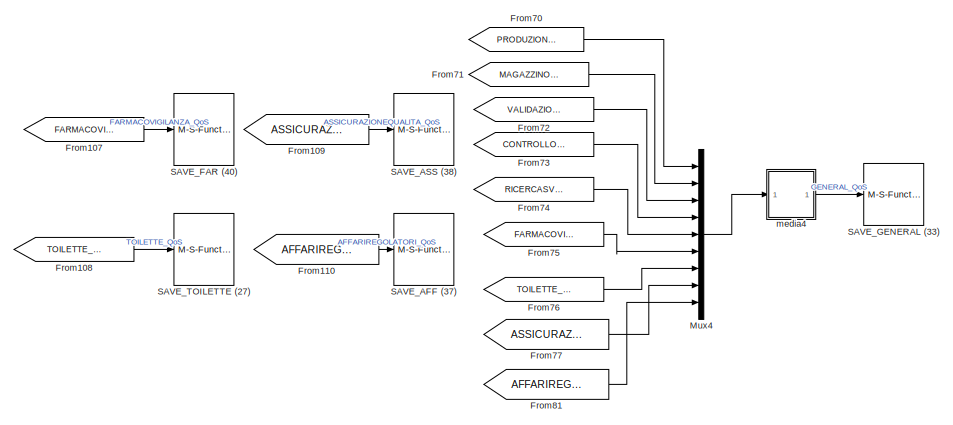
[diagram: root canvas - part 1/12, top right region]
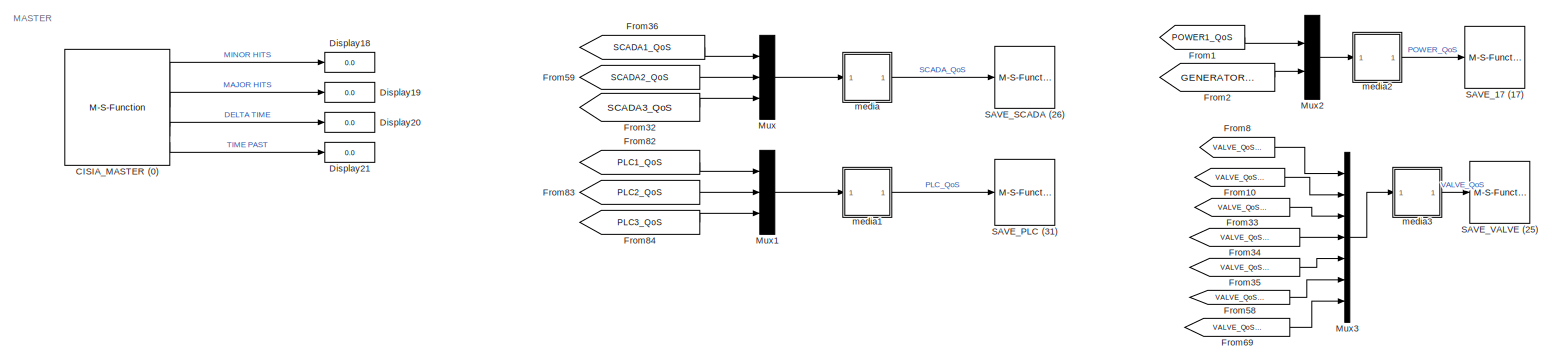
[diagram: root canvas - part 2/12, top left region]
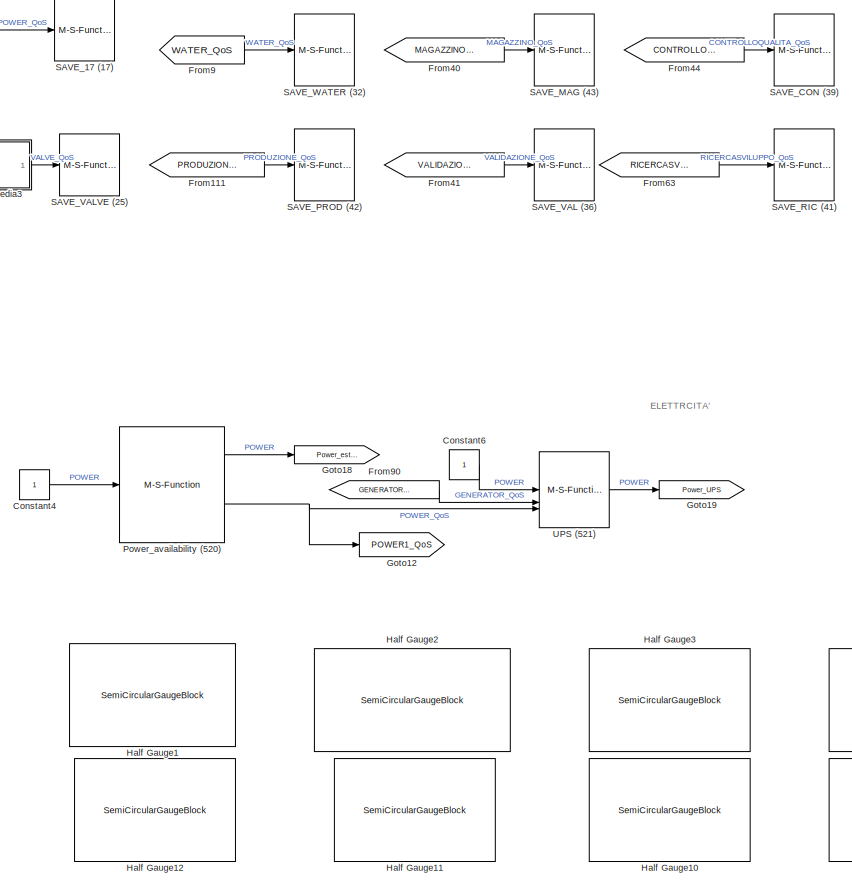
[diagram: root canvas - part 3/12, top center region]
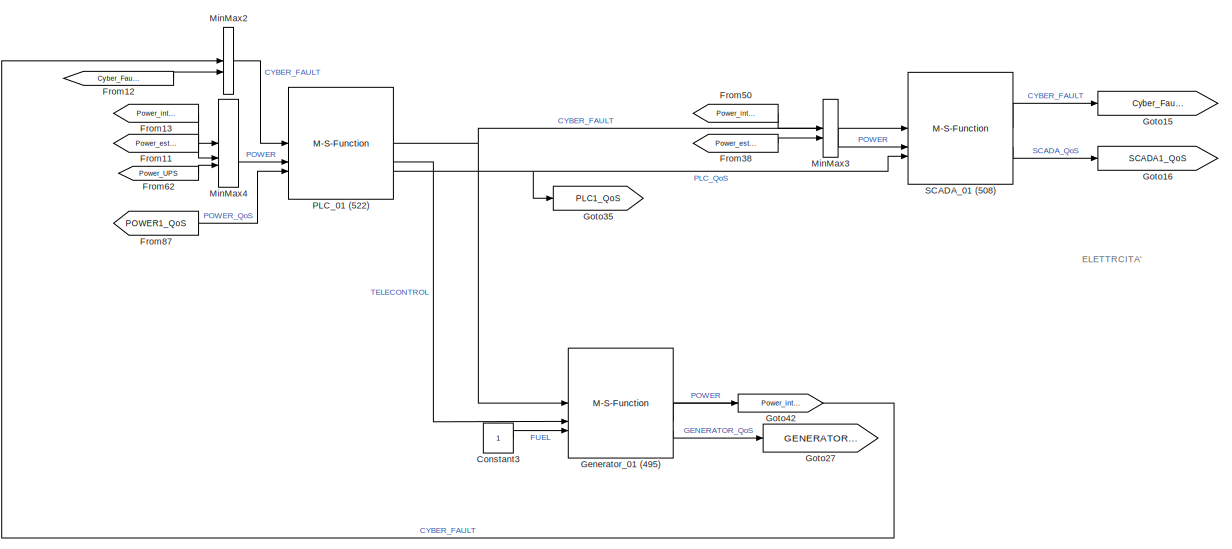
[diagram: root canvas - part 4/12, top left region]
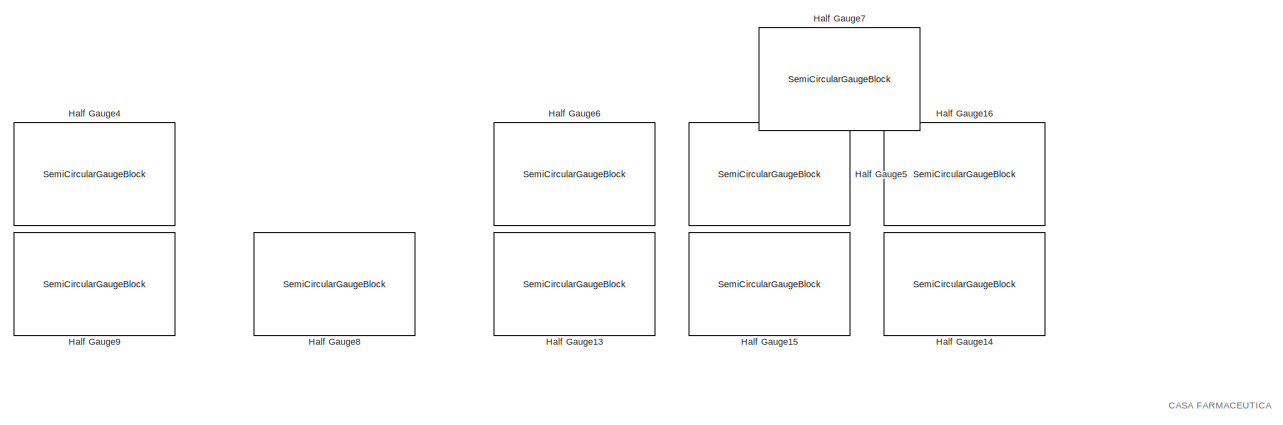
[diagram: root canvas - part 5/12, top right region]
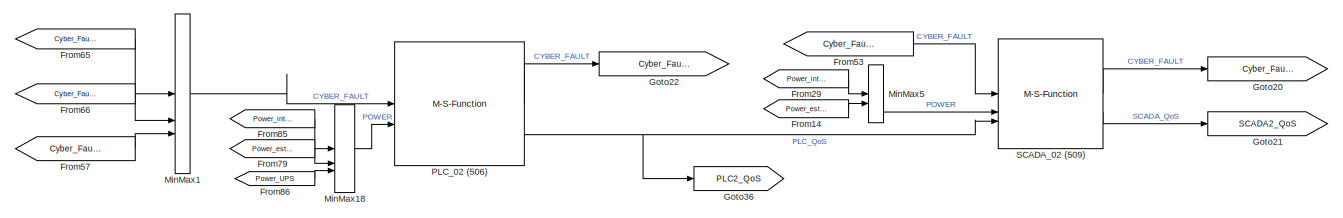
[diagram: root canvas - part 6/12, central region]
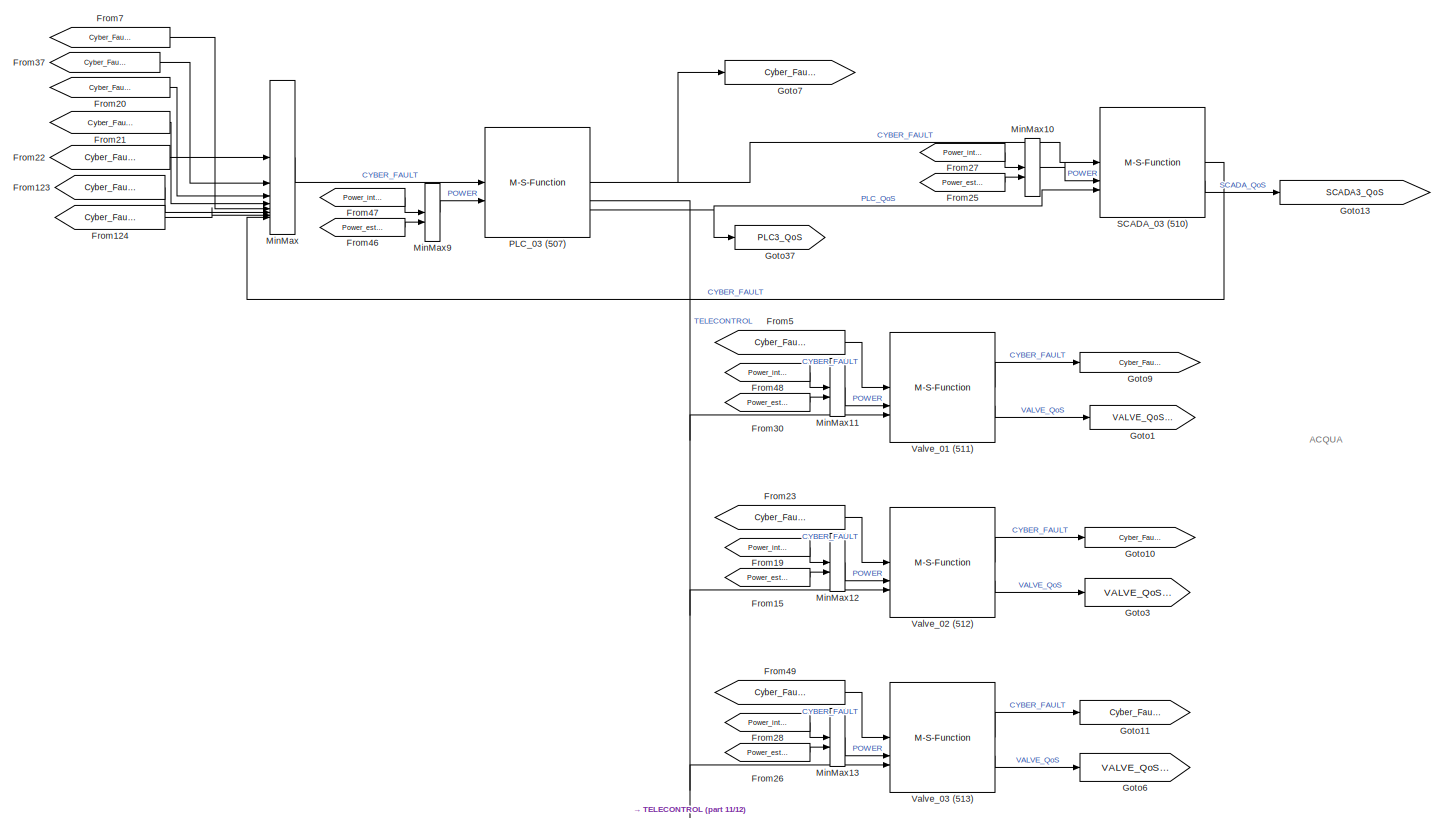
[diagram: root canvas - part 7/12, middle left region]
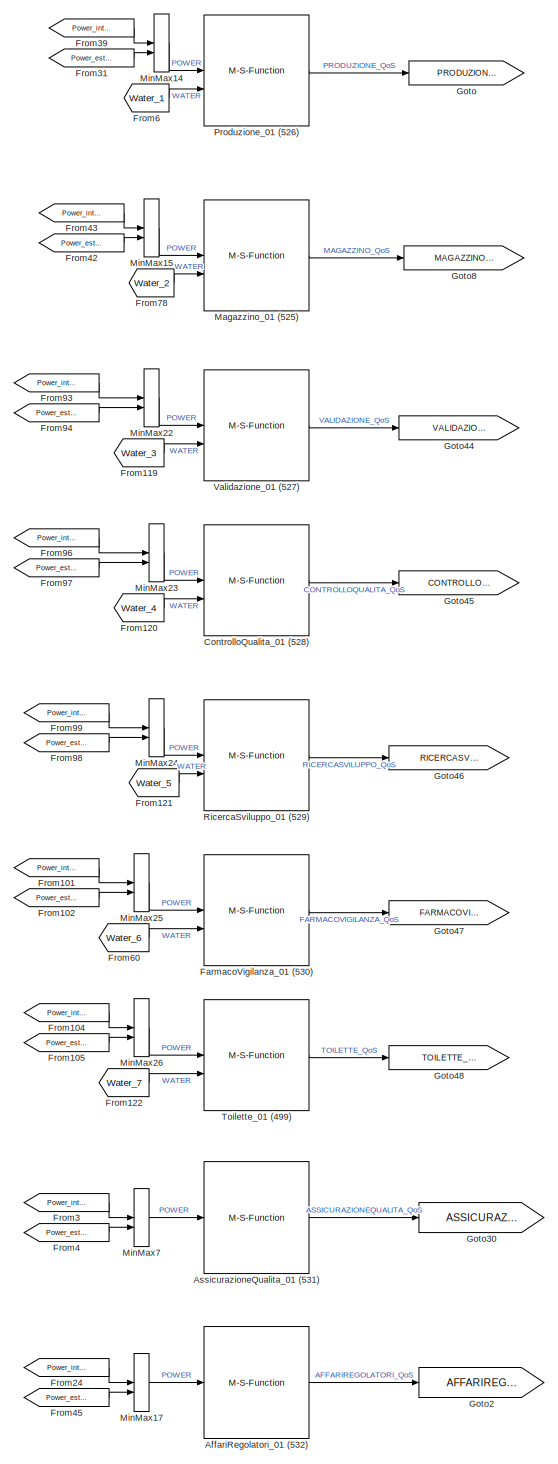
[diagram: root canvas - part 8/12, bottom right region]
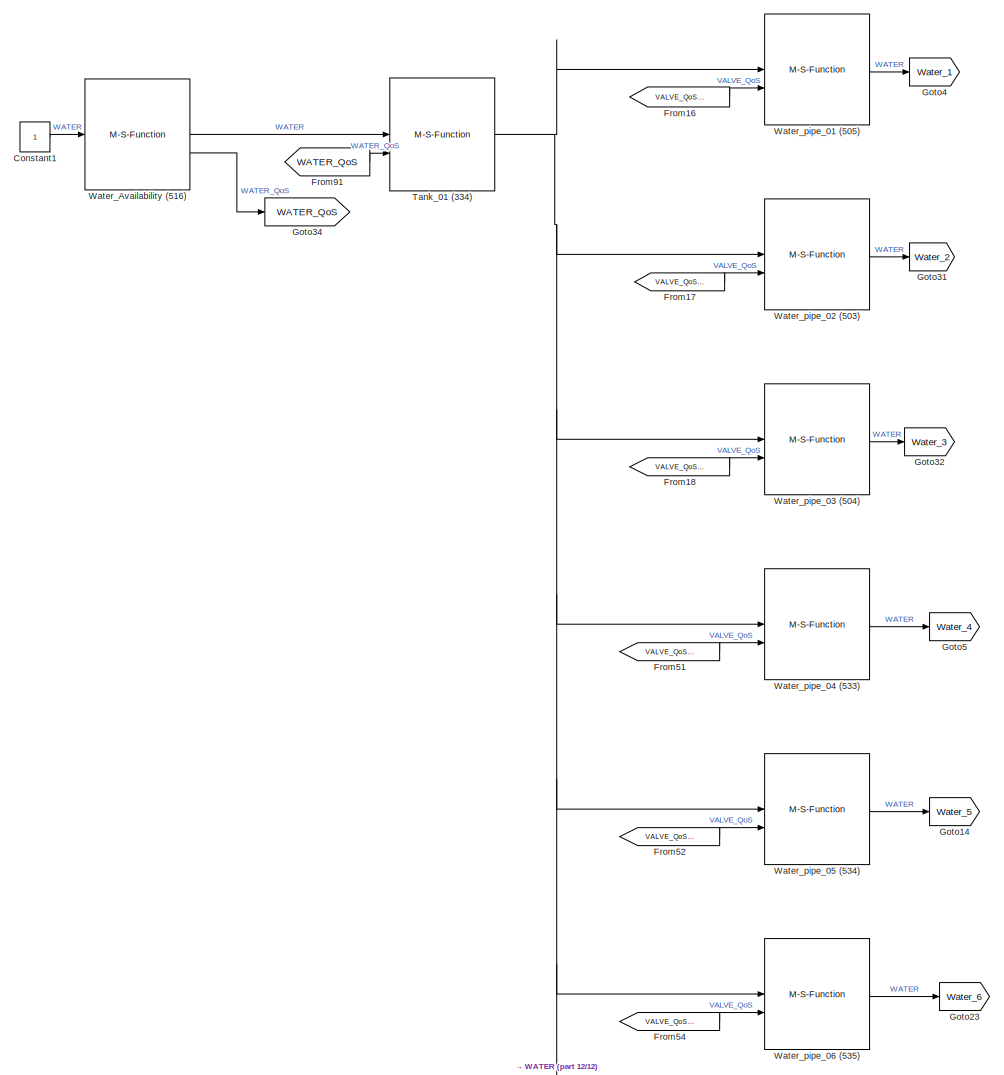
[diagram: root canvas - part 9/12, bottom center region]
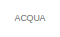
[diagram: root canvas - part 10/12, central region]
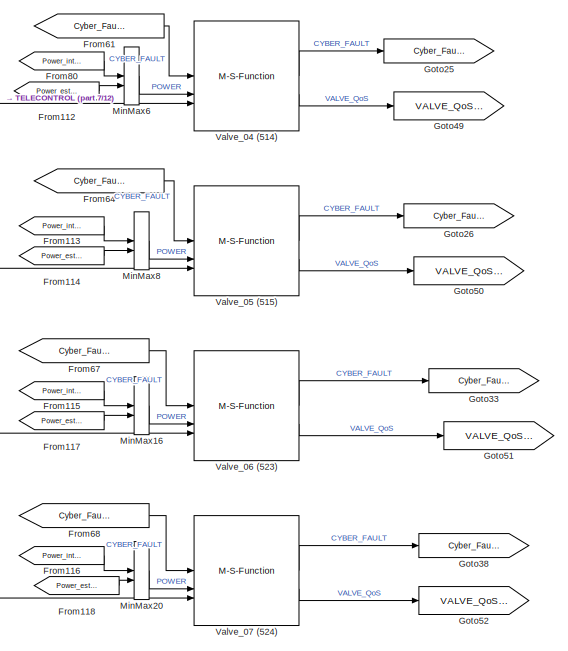
[diagram: root canvas - part 11/12, bottom left region]
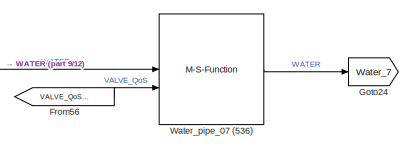
[diagram: root canvas - part 12/12, bottom right region]
MODEL slx_87e2f26b09fa
KIND model
CONFIG AbsTol = auto
CONFIG EnableMultiTasking = off
CONFIG FixedStep = auto
CONFIG MaxStep = auto
CONFIG MinStep = auto
CONFIG RelTol = 1e-3
CONFIG SampleTimeConstraint = Unconstrained
CONFIG SolverName = VariableStepAuto
CONFIG StartTime = 0.0
CONFIG StopTime = 16
BLOCK [M-S-Function] AffariRegolatori_01 (532)
  FunctionName = cisia_msfun
  Parameters = Parameter1, Parameter2, Parameter3, resources, Parameter10, codeupdate, step_received, step_computed, dynamic_computed, step_sended, id_entity, id_project, id_type, name_type, color
BLOCK [M-S-Function] AssicurazioneQualita_01 (531)
  FunctionName = cisia_msfun
  Parameters = Parameter1, Parameter2, Parameter3, resources, Parameter10, codeupdate, step_received, step_computed, dynamic_computed, step_sended, id_entity, id_project, id_type, name_type, color
BLOCK [M-S-Function] CISIA_MASTER (0)
  FunctionName = cisia_msfun
  Parameters = Parameter1, Parameter2, Parameter3, resources, Parameter4, Parameter5, Parameter6, Parameter7, Parameter8, Parameter9,Parameter11,Parameter12
BLOCK [Constant] Constant1
BLOCK [Constant] Constant3
BLOCK [Constant] Constant4
BLOCK [Constant] Constant6
BLOCK [M-S-Function] ControlloQualita_01 (528)
  FunctionName = cisia_msfun
  Parameters = Parameter1, Parameter2, Parameter3, resources, Parameter10, codeupdate, step_received, step_computed, dynamic_computed, step_sended, id_entity, id_project, id_type, name_type, color
BLOCK [Display] Display18
  Decimation = 1
BLOCK [Display] Display19
  Decimation = 1
BLOCK [Display] Display20
  Decimation = 1
BLOCK [Display] Display21
  Decimation = 1
BLOCK [M-S-Function] FarmacoVigilanza_01 (530)
  FunctionName = cisia_msfun
  Parameters = Parameter1, Parameter2, Parameter3, resources, Parameter10, codeupdate, step_received, step_computed, dynamic_computed, step_sended, id_entity, id_project, id_type, name_type, color
BLOCK [From] From1
  GotoTag = POWER1_QoS
BLOCK [From] From10
  GotoTag = VALVE_QoS_02
BLOCK [From] From101
  GotoTag = Power_interno
BLOCK [From] From102
  GotoTag = Power_esterno
BLOCK [From] From104
  GotoTag = Power_interno
BLOCK [From] From105
  GotoTag = Power_esterno
BLOCK [From] From107
  GotoTag = FARMACOVIGILANZA_QoS
BLOCK [From] From108
  GotoTag = TOILETTE_QoS
BLOCK [From] From109
  GotoTag = ASSICURAZIONEQUALITA_QoS
BLOCK [From] From11
  GotoTag = Power_esterno
BLOCK [From] From110
  GotoTag = AFFARIREGOLATORI_QoS
BLOCK [From] From111
  GotoTag = PRODUZIONE_QoS
BLOCK [From] From112
  GotoTag = Power_esterno
BLOCK [From] From113
  GotoTag = Power_interno
BLOCK [From] From114
  GotoTag = Power_esterno
BLOCK [From] From115
  GotoTag = Power_interno
BLOCK [From] From116
  GotoTag = Power_interno
BLOCK [From] From117
  GotoTag = Power_esterno
BLOCK [From] From118
  GotoTag = Power_esterno
BLOCK [From] From119
  GotoTag = Water_3
BLOCK [From] From12
  GotoTag = Cyber_Fault_S1
BLOCK [From] From120
  GotoTag = Water_4
BLOCK [From] From121
  GotoTag = Water_5
BLOCK [From] From122
  GotoTag = Water_7
BLOCK [From] From123
  GotoTag = Cyber_Fault_V06
BLOCK [From] From124
  GotoTag = Cyber_Fault_V07
BLOCK [From] From13
  GotoTag = Power_interno
BLOCK [From] From14
  GotoTag = Power_esterno
BLOCK [From] From15
  GotoTag = Power_esterno
BLOCK [From] From16
  GotoTag = VALVE_QoS_01
BLOCK [From] From17
  GotoTag = VALVE_QoS_02
BLOCK [From] From18
  GotoTag = VALVE_QoS_03
BLOCK [From] From19
  GotoTag = Power_interno
BLOCK [From] From2
  GotoTag = GENERATOR_QoS
BLOCK [From] From20
  GotoTag = Cyber_Fault_V03
BLOCK [From] From21
  GotoTag = Cyber_Fault_V04
BLOCK [From] From22
  GotoTag = Cyber_Fault_V05
BLOCK [From] From23
  GotoTag = Cyber_Fault_PLC3
BLOCK [From] From24
  GotoTag = Power_interno
BLOCK [From] From25
  GotoTag = Power_esterno
BLOCK [From] From26
  GotoTag = Power_esterno
BLOCK [From] From27
  GotoTag = Power_interno
BLOCK [From] From28
  GotoTag = Power_interno
BLOCK [From] From29
  GotoTag = Power_interno
BLOCK [From] From3
  GotoTag = Power_interno
BLOCK [From] From30
  GotoTag = Power_esterno
BLOCK [From] From31
  GotoTag = Power_esterno
BLOCK [From] From32
  GotoTag = SCADA3_QoS
BLOCK [From] From33
  GotoTag = VALVE_QoS_03
BLOCK [From] From34
  GotoTag = VALVE_QoS_04
BLOCK [From] From35
  GotoTag = VALVE_QoS_05
BLOCK [From] From36
  GotoTag = SCADA1_QoS
BLOCK [From] From37
  GotoTag = Cyber_Fault_V02
BLOCK [From] From38
  GotoTag = Power_esterno
BLOCK [From] From39
  GotoTag = Power_interno
BLOCK [From] From4
  GotoTag = Power_esterno
BLOCK [From] From40
  GotoTag = MAGAZZINO_QoS
BLOCK [From] From41
  GotoTag = VALIDAZIONE_QoS
BLOCK [From] From42
  GotoTag = Power_esterno
BLOCK [From] From43
  GotoTag = Power_interno
BLOCK [From] From44
  GotoTag = CONTROLLOQUALITA_QoS
BLOCK [From] From45
  GotoTag = Power_esterno
BLOCK [From] From46
  GotoTag = Power_esterno
BLOCK [From] From47
  GotoTag = Power_interno
BLOCK [From] From48
  GotoTag = Power_interno
BLOCK [From] From49
  GotoTag = Cyber_Fault_PLC3
BLOCK [From] From5
  GotoTag = Cyber_Fault_PLC3
BLOCK [From] From50
  GotoTag = Power_interno
BLOCK [From] From51
  GotoTag = VALVE_QoS_04
BLOCK [From] From52
  GotoTag = VALVE_QoS_05
BLOCK [From] From53
  GotoTag = Cyber_Fault_PLC2
BLOCK [From] From54
  GotoTag = VALVE_QoS_06
BLOCK [From] From56
  GotoTag = VALVE_QoS_07
BLOCK [From] From57
  GotoTag = Cyber_Fault_S2
BLOCK [From] From58
  GotoTag = VALVE_QoS_06
BLOCK [From] From59
  GotoTag = SCADA2_QoS
BLOCK [From] From6
  GotoTag = Water_1
BLOCK [From] From60
  GotoTag = Water_6
BLOCK [From] From61
  GotoTag = Cyber_Fault_PLC3
BLOCK [From] From62
  GotoTag = Power_UPS
BLOCK [From] From63
  GotoTag = RICERCASVILUPPO_QoS
BLOCK [From] From64
  GotoTag = Cyber_Fault_PLC3
BLOCK [From] From65
  GotoTag = Cyber_Fault_V01
BLOCK [From] From66
  GotoTag = Cyber_Fault_V02
BLOCK [From] From67
  GotoTag = Cyber_Fault_PLC3
BLOCK [From] From68
  GotoTag = Cyber_Fault_PLC3
BLOCK [From] From69
  GotoTag = VALVE_QoS_07
BLOCK [From] From7
  GotoTag = Cyber_Fault_V01
BLOCK [From] From70
  GotoTag = PRODUZIONE_QoS
BLOCK [From] From71
  GotoTag = MAGAZZINO_QoS
BLOCK [From] From72
  GotoTag = VALIDAZIONE_QoS
BLOCK [From] From73
  GotoTag = CONTROLLOQUALITA_QoS
BLOCK [From] From74
  GotoTag = RICERCASVILUPPO_QoS
BLOCK [From] From75
  GotoTag = FARMACOVIGILANZA_QoS
BLOCK [From] From76
  GotoTag = TOILETTE_QoS
BLOCK [From] From77
  GotoTag = ASSICURAZIONEQUALITA_QoS
BLOCK [From] From78
  GotoTag = Water_2
BLOCK [From] From79
  GotoTag = Power_esterno
BLOCK [From] From8
  GotoTag = VALVE_QoS_01
BLOCK [From] From80
  GotoTag = Power_interno
BLOCK [From] From81
  GotoTag = AFFARIREGOLATORI_QoS
BLOCK [From] From82
  GotoTag = PLC1_QoS
BLOCK [From] From83
  GotoTag = PLC2_QoS
BLOCK [From] From84
  GotoTag = PLC3_QoS
BLOCK [From] From85
  GotoTag = Power_interno
BLOCK [From] From86
  GotoTag = Power_UPS
BLOCK [From] From87
  GotoTag = POWER1_QoS
BLOCK [From] From9
  GotoTag = WATER_QoS
BLOCK [From] From90
  GotoTag = GENERATOR_QoS
BLOCK [From] From91
  GotoTag = WATER_QoS
BLOCK [From] From93
  GotoTag = Power_interno
BLOCK [From] From94
  GotoTag = Power_esterno
BLOCK [From] From96
  GotoTag = Power_interno
BLOCK [From] From97
  GotoTag = Power_esterno
BLOCK [From] From98
  GotoTag = Power_esterno
BLOCK [From] From99
  GotoTag = Power_interno
BLOCK [M-S-Function] Generator_01 (495)
  FunctionName = cisia_msfun
  Parameters = Parameter1, Parameter2, Parameter3, resources, Parameter10, codeupdate, step_received, step_computed, dynamic_computed, step_sended, id_entity, id_project, id_type, name_type, color
BLOCK [Goto] Goto
  GotoTag = PRODUZIONE_QoS
BLOCK [Goto] Goto1
  GotoTag = VALVE_QoS_01
BLOCK [Goto] Goto10
  GotoTag = Cyber_Fault_V02
BLOCK [Goto] Goto11
  GotoTag = Cyber_Fault_V03
BLOCK [Goto] Goto12
  GotoTag = POWER1_QoS
BLOCK [Goto] Goto13
  GotoTag = SCADA3_QoS
BLOCK [Goto] Goto14
  GotoTag = Water_5
BLOCK [Goto] Goto15
  GotoTag = Cyber_Fault_S1
BLOCK [Goto] Goto16
  GotoTag = SCADA1_QoS
BLOCK [Goto] Goto18
  GotoTag = Power_esterno
BLOCK [Goto] Goto19
  GotoTag = Power_UPS
BLOCK [Goto] Goto2
  GotoTag = AFFARIREGOLATORI_QoS
BLOCK [Goto] Goto20
  GotoTag = Cyber_Fault_S2
BLOCK [Goto] Goto21
  GotoTag = SCADA2_QoS
BLOCK [Goto] Goto22
  GotoTag = Cyber_Fault_PLC2
BLOCK [Goto] Goto23
  GotoTag = Water_6
BLOCK [Goto] Goto24
  GotoTag = Water_7
BLOCK [Goto] Goto25
  GotoTag = Cyber_Fault_V04
BLOCK [Goto] Goto26
  GotoTag = Cyber_Fault_V05
BLOCK [Goto] Goto27
  GotoTag = GENERATOR_QoS
BLOCK [Goto] Goto3
  GotoTag = VALVE_QoS_02
BLOCK [Goto] Goto30
  GotoTag = ASSICURAZIONEQUALITA_QoS
BLOCK [Goto] Goto31
  GotoTag = Water_2
BLOCK [Goto] Goto32
  GotoTag = Water_3
BLOCK [Goto] Goto33
  GotoTag = Cyber_Fault_V06
BLOCK [Goto] Goto34
  GotoTag = WATER_QoS
BLOCK [Goto] Goto35
  GotoTag = PLC1_QoS
BLOCK [Goto] Goto36
  GotoTag = PLC2_QoS
BLOCK [Goto] Goto37
  GotoTag = PLC3_QoS
BLOCK [Goto] Goto38
  GotoTag = Cyber_Fault_V07
BLOCK [Goto] Goto4
  GotoTag = Water_1
BLOCK [Goto] Goto42
  GotoTag = Power_interno
BLOCK [Goto] Goto44
  GotoTag = VALIDAZIONE_QoS
BLOCK [Goto] Goto45
  GotoTag = CONTROLLOQUALITA_QoS
BLOCK [Goto] Goto46
  GotoTag = RICERCASVILUPPO_QoS
BLOCK [Goto] Goto47
  GotoTag = FARMACOVIGILANZA_QoS
BLOCK [Goto] Goto48
  GotoTag = TOILETTE_QoS
BLOCK [Goto] Goto49
  GotoTag = VALVE_QoS_04
BLOCK [Goto] Goto5
  GotoTag = Water_4
BLOCK [Goto] Goto50
  GotoTag = VALVE_QoS_05
BLOCK [Goto] Goto51
  GotoTag = VALVE_QoS_06
BLOCK [Goto] Goto52
  GotoTag = VALVE_QoS_07
BLOCK [Goto] Goto6
  GotoTag = VALVE_QoS_03
BLOCK [Goto] Goto7
  GotoTag = Cyber_Fault_PLC3
BLOCK [Goto] Goto8
  GotoTag = MAGAZZINO_QoS
BLOCK [Goto] Goto9
  GotoTag = Cyber_Fault_V01
BLOCK [SemiCircularGaugeBlock] Half Gauge1
  ScaleMax = 1
BLOCK [SemiCircularGaugeBlock] Half Gauge10
  ScaleMax = 1
BLOCK [SemiCircularGaugeBlock] Half Gauge11
  ScaleMax = 1
BLOCK [SemiCircularGaugeBlock] Half Gauge12
  ScaleMax = 1
BLOCK [SemiCircularGaugeBlock] Half Gauge13
  ScaleMax = 1
BLOCK [SemiCircularGaugeBlock] Half Gauge14
  ScaleMax = 1
BLOCK [SemiCircularGaugeBlock] Half Gauge15
  ScaleMax = 1
BLOCK [SemiCircularGaugeBlock] Half Gauge16
  ScaleMax = 1
BLOCK [SemiCircularGaugeBlock] Half Gauge2
  ScaleMax = 1
BLOCK [SemiCircularGaugeBlock] Half Gauge3
  ScaleMax = 1
BLOCK [SemiCircularGaugeBlock] Half Gauge4
  ScaleMax = 1
BLOCK [SemiCircularGaugeBlock] Half Gauge5
  ScaleMax = 1
BLOCK [SemiCircularGaugeBlock] Half Gauge6
  ScaleMax = 1
BLOCK [SemiCircularGaugeBlock] Half Gauge7
  ScaleMax = 1
BLOCK [SemiCircularGaugeBlock] Half Gauge8
  ScaleMax = 1
BLOCK [SemiCircularGaugeBlock] Half Gauge9
  ScaleMax = 1
BLOCK [M-S-Function] Magazzino_01 (525)
  FunctionName = cisia_msfun
  Parameters = Parameter1, Parameter2, Parameter3, resources, Parameter10, codeupdate, step_received, step_computed, dynamic_computed, step_sended, id_entity, id_project, id_type, name_type, color
BLOCK [MinMax] MinMax
  Function = max
  Inputs = 8
BLOCK [MinMax] MinMax1
  Function = max
  Inputs = 3
BLOCK [MinMax] MinMax10
  Function = max
  Inputs = 2
BLOCK [MinMax] MinMax11
  Function = max
  Inputs = 2
BLOCK [MinMax] MinMax12
  Function = max
  Inputs = 2
BLOCK [MinMax] MinMax13
  Function = max
  Inputs = 2
BLOCK [MinMax] MinMax14
  Function = max
  Inputs = 2
BLOCK [MinMax] MinMax15
  Function = max
  Inputs = 2
BLOCK [MinMax] MinMax16
  Function = max
  Inputs = 2
BLOCK [MinMax] MinMax17
  Function = max
  Inputs = 2
BLOCK [MinMax] MinMax18
  Function = max
  Inputs = 3
BLOCK [MinMax] MinMax2
  Function = max
  Inputs = 2
BLOCK [MinMax] MinMax20
  Function = max
  Inputs = 2
BLOCK [MinMax] MinMax22
  Function = max
  Inputs = 2
BLOCK [MinMax] MinMax23
  Function = max
  Inputs = 2
BLOCK [MinMax] MinMax24
  Function = max
  Inputs = 2
BLOCK [MinMax] MinMax25
  Function = max
  Inputs = 2
BLOCK [MinMax] MinMax26
  Function = max
  Inputs = 2
BLOCK [MinMax] MinMax3
  Function = max
  Inputs = 2
BLOCK [MinMax] MinMax4
  Function = max
  Inputs = 3
BLOCK [MinMax] MinMax5
  Function = max
  Inputs = 2
BLOCK [MinMax] MinMax6
  Function = max
  Inputs = 2
BLOCK [MinMax] MinMax7
  Function = max
  Inputs = 2
BLOCK [MinMax] MinMax8
  Function = max
  Inputs = 2
BLOCK [MinMax] MinMax9
  Function = max
  Inputs = 2
BLOCK [Mux] Mux
  DisplayOption = bar
  Inputs = 3
BLOCK [Mux] Mux1
  DisplayOption = bar
  Inputs = 3
BLOCK [Mux] Mux2
  DisplayOption = bar
  Inputs = 2
BLOCK [Mux] Mux3
  DisplayOption = bar
  Inputs = 7
BLOCK [Mux] Mux4
  DisplayOption = bar
  Inputs = 9
BLOCK [M-S-Function] PLC_01 (522)
  FunctionName = cisia_msfun
  Parameters = Parameter1, Parameter2, Parameter3, resources, Parameter10, codeupdate, step_received, step_computed, dynamic_computed, step_sended, id_entity, id_project, id_type, name_type, color
BLOCK [M-S-Function] PLC_02 (506)
  FunctionName = cisia_msfun
  Parameters = Parameter1, Parameter2, Parameter3, resources, Parameter10, codeupdate, step_received, step_computed, dynamic_computed, step_sended, id_entity, id_project, id_type, name_type, color
BLOCK [M-S-Function] PLC_03 (507)
  FunctionName = cisia_msfun
  Parameters = Parameter1, Parameter2, Parameter3, resources, Parameter10, codeupdate, step_received, step_computed, dynamic_computed, step_sended, id_entity, id_project, id_type, name_type, color
BLOCK [M-S-Function] Power_availability (520)
  FunctionName = cisia_msfun
  Parameters = Parameter1, Parameter2, Parameter3, resources, Parameter10, codeupdate, step_received, step_computed, dynamic_computed, step_sended, id_entity, id_project, id_type, name_type, color
BLOCK [M-S-Function] Produzione_01 (526)
  FunctionName = cisia_msfun
  Parameters = Parameter1, Parameter2, Parameter3, resources, Parameter10, codeupdate, step_received, step_computed, dynamic_computed, step_sended, id_entity, id_project, id_type, name_type, color
BLOCK [M-S-Function] RicercaSviluppo_01 (529)
  FunctionName = cisia_msfun
  Parameters = Parameter1, Parameter2, Parameter3, resources, Parameter10, codeupdate, step_received, step_computed, dynamic_computed, step_sended, id_entity, id_project, id_type, name_type, color
BLOCK [M-S-Function] SAVE_17 (17)
  FunctionName = cisia_msfun
  Parameters = Parameter1, Parameter2, Parameter3, Parameter4,Parameter5,Parameter6,Parameter7
BLOCK [M-S-Function] SAVE_AFF (37)
  FunctionName = cisia_msfun
  Parameters = Parameter1, Parameter2, Parameter3, Parameter4,Parameter5,Parameter6,Parameter7
BLOCK [M-S-Function] SAVE_ASS (38)
  FunctionName = cisia_msfun
  Parameters = Parameter1, Parameter2, Parameter3, Parameter4,Parameter5,Parameter6,Parameter7
BLOCK [M-S-Function] SAVE_CON (39)
  FunctionName = cisia_msfun
  Parameters = Parameter1, Parameter2, Parameter3, Parameter4,Parameter5,Parameter6,Parameter7
BLOCK [M-S-Function] SAVE_FAR (40)
  FunctionName = cisia_msfun
  Parameters = Parameter1, Parameter2, Parameter3, Parameter4,Parameter5,Parameter6,Parameter7
BLOCK [M-S-Function] SAVE_GENERAL (33)
  FunctionName = cisia_msfun
  Parameters = Parameter1, Parameter2, Parameter3, Parameter4,Parameter5,Parameter6,Parameter7
BLOCK [M-S-Function] SAVE_MAG (43)
  FunctionName = cisia_msfun
  Parameters = Parameter1, Parameter2, Parameter3, Parameter4,Parameter5,Parameter6,Parameter7
BLOCK [M-S-Function] SAVE_PLC (31)
  FunctionName = cisia_msfun
  Parameters = Parameter1, Parameter2, Parameter3, Parameter4,Parameter5,Parameter6,Parameter7
BLOCK [M-S-Function] SAVE_PROD (42)
  FunctionName = cisia_msfun
  Parameters = Parameter1, Parameter2, Parameter3, Parameter4,Parameter5,Parameter6,Parameter7
BLOCK [M-S-Function] SAVE_RIC (41)
  FunctionName = cisia_msfun
  Parameters = Parameter1, Parameter2, Parameter3, Parameter4,Parameter5,Parameter6,Parameter7
BLOCK [M-S-Function] SAVE_SCADA (26)
  FunctionName = cisia_msfun
  Parameters = Parameter1, Parameter2, Parameter3, Parameter4,Parameter5,Parameter6,Parameter7
BLOCK [M-S-Function] SAVE_TOILETTE (27)
  FunctionName = cisia_msfun
  Parameters = Parameter1, Parameter2, Parameter3, Parameter4,Parameter5,Parameter6,Parameter7
BLOCK [M-S-Function] SAVE_VAL (36)
  FunctionName = cisia_msfun
  Parameters = Parameter1, Parameter2, Parameter3, Parameter4,Parameter5,Parameter6,Parameter7
BLOCK [M-S-Function] SAVE_VALVE (25)
  FunctionName = cisia_msfun
  Parameters = Parameter1, Parameter2, Parameter3, Parameter4,Parameter5,Parameter6,Parameter7
BLOCK [M-S-Function] SAVE_WATER (32)
  FunctionName = cisia_msfun
  Parameters = Parameter1, Parameter2, Parameter3, Parameter4,Parameter5,Parameter6,Parameter7
BLOCK [M-S-Function] SCADA_01 (508)
  FunctionName = cisia_msfun
  Parameters = Parameter1, Parameter2, Parameter3, resources, Parameter10, codeupdate, step_received, step_computed, dynamic_computed, step_sended, id_entity, id_project, id_type, name_type, color
BLOCK [M-S-Function] SCADA_02 (509)
  FunctionName = cisia_msfun
  Parameters = Parameter1, Parameter2, Parameter3, resources, Parameter10, codeupdate, step_received, step_computed, dynamic_computed, step_sended, id_entity, id_project, id_type, name_type, color
BLOCK [M-S-Function] SCADA_03 (510)
  FunctionName = cisia_msfun
  Parameters = Parameter1, Parameter2, Parameter3, resources, Parameter10, codeupdate, step_received, step_computed, dynamic_computed, step_sended, id_entity, id_project, id_type, name_type, color
BLOCK [M-S-Function] Tank_01 (334)
  FunctionName = cisia_msfun
  Parameters = Parameter1, Parameter2, Parameter3, resources, Parameter10, codeupdate, step_received, step_computed, dynamic_computed, step_sended, id_entity, id_project, id_type, name_type, color
BLOCK [M-S-Function] Toilette_01 (499)
  FunctionName = cisia_msfun
  Parameters = Parameter1, Parameter2, Parameter3, resources, Parameter10, codeupdate, step_received, step_computed, dynamic_computed, step_sended, id_entity, id_project, id_type, name_type, color
BLOCK [M-S-Function] UPS (521)
  FunctionName = cisia_msfun
  Parameters = Parameter1, Parameter2, Parameter3, resources, Parameter10, codeupdate, step_received, step_computed, dynamic_computed, step_sended, id_entity, id_project, id_type, name_type, color
BLOCK [M-S-Function] Validazione_01 (527)
  FunctionName = cisia_msfun
  Parameters = Parameter1, Parameter2, Parameter3, resources, Parameter10, codeupdate, step_received, step_computed, dynamic_computed, step_sended, id_entity, id_project, id_type, name_type, color
BLOCK [M-S-Function] Valve_01 (511)
  FunctionName = cisia_msfun
  Parameters = Parameter1, Parameter2, Parameter3, resources, Parameter10, codeupdate, step_received, step_computed, dynamic_computed, step_sended, id_entity, id_project, id_type, name_type, color
BLOCK [M-S-Function] Valve_02 (512)
  FunctionName = cisia_msfun
  Parameters = Parameter1, Parameter2, Parameter3, resources, Parameter10, codeupdate, step_received, step_computed, dynamic_computed, step_sended, id_entity, id_project, id_type, name_type, color
BLOCK [M-S-Function] Valve_03 (513)
  FunctionName = cisia_msfun
  Parameters = Parameter1, Parameter2, Parameter3, resources, Parameter10, codeupdate, step_received, step_computed, dynamic_computed, step_sended, id_entity, id_project, id_type, name_type, color
BLOCK [M-S-Function] Valve_04 (514)
  FunctionName = cisia_msfun
  Parameters = Parameter1, Parameter2, Parameter3, resources, Parameter10, codeupdate, step_received, step_computed, dynamic_computed, step_sended, id_entity, id_project, id_type, name_type, color
BLOCK [M-S-Function] Valve_05 (515)
  FunctionName = cisia_msfun
  Parameters = Parameter1, Parameter2, Parameter3, resources, Parameter10, codeupdate, step_received, step_computed, dynamic_computed, step_sended, id_entity, id_project, id_type, name_type, color
BLOCK [M-S-Function] Valve_06 (523)
  FunctionName = cisia_msfun
  Parameters = Parameter1, Parameter2, Parameter3, resources, Parameter10, codeupdate, step_received, step_computed, dynamic_computed, step_sended, id_entity, id_project, id_type, name_type, color
BLOCK [M-S-Function] Valve_07 (524)
  FunctionName = cisia_msfun
  Parameters = Parameter1, Parameter2, Parameter3, resources, Parameter10, codeupdate, step_received, step_computed, dynamic_computed, step_sended, id_entity, id_project, id_type, name_type, color
BLOCK [M-S-Function] Water_Availability (516)
  FunctionName = cisia_msfun
  Parameters = Parameter1, Parameter2, Parameter3, resources, Parameter10, codeupdate, step_received, step_computed, dynamic_computed, step_sended, id_entity, id_project, id_type, name_type, color
BLOCK [M-S-Function] Water_pipe_01 (505)
  FunctionName = cisia_msfun
  Parameters = Parameter1, Parameter2, Parameter3, resources, Parameter10, codeupdate, step_received, step_computed, dynamic_computed, step_sended, id_entity, id_project, id_type, name_type, color
BLOCK [M-S-Function] Water_pipe_02 (503)
  FunctionName = cisia_msfun
  Parameters = Parameter1, Parameter2, Parameter3, resources, Parameter10, codeupdate, step_received, step_computed, dynamic_computed, step_sended, id_entity, id_project, id_type, name_type, color
BLOCK [M-S-Function] Water_pipe_03 (504)
  FunctionName = cisia_msfun
  Parameters = Parameter1, Parameter2, Parameter3, resources, Parameter10, codeupdate, step_received, step_computed, dynamic_computed, step_sended, id_entity, id_project, id_type, name_type, color
BLOCK [M-S-Function] Water_pipe_04 (533)
  FunctionName = cisia_msfun
  Parameters = Parameter1, Parameter2, Parameter3, resources, Parameter10, codeupdate, step_received, step_computed, dynamic_computed, step_sended, id_entity, id_project, id_type, name_type, color
BLOCK [M-S-Function] Water_pipe_05 (534)
  FunctionName = cisia_msfun
  Parameters = Parameter1, Parameter2, Parameter3, resources, Parameter10, codeupdate, step_received, step_computed, dynamic_computed, step_sended, id_entity, id_project, id_type, name_type, color
BLOCK [M-S-Function] Water_pipe_06 (535)
  FunctionName = cisia_msfun
  Parameters = Parameter1, Parameter2, Parameter3, resources, Parameter10, codeupdate, step_received, step_computed, dynamic_computed, step_sended, id_entity, id_project, id_type, name_type, color
BLOCK [M-S-Function] Water_pipe_07 (536)
  FunctionName = cisia_msfun
  Parameters = Parameter1, Parameter2, Parameter3, resources, Parameter10, codeupdate, step_received, step_computed, dynamic_computed, step_sended, id_entity, id_project, id_type, name_type, color
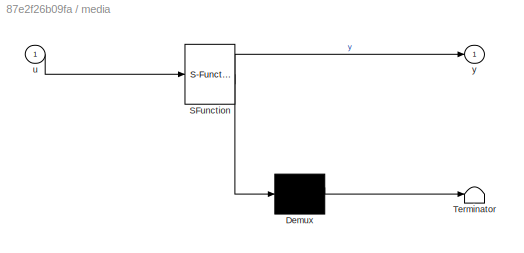
BLOCK [SubSystem] media
  ErrorFcn = Stateflow.Translate.translate
  LibrarySourceBlock = simulink/User-Defined\nFunctions/MATLAB Function
  PermitHierarchicalResolution = ExplicitOnly
  SFBlockType = MATLAB Function
  TreatAsAtomicUnit = on
BLOCK [Demux] media/ Demux 
  Outputs = 1
BLOCK [S-Function] media/ SFunction 
  EnableBusSupport = on
  FunctionName = sf_sfun
  PortCounts = [1 2]
  SFcnIsStateOwnerBlock = off
  SFunctionDeploymentMode = off
  Tag = Stateflow S-Function 2
BLOCK [Terminator] media/ Terminator 
BLOCK [Inport] media/u
BLOCK [Outport] media/y
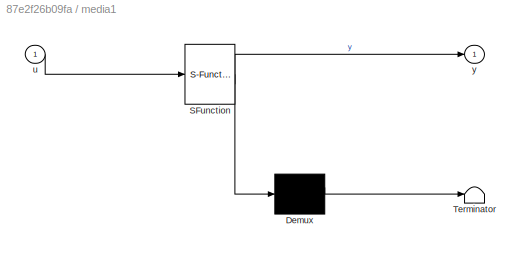
BLOCK [SubSystem] media1
  ErrorFcn = Stateflow.Translate.translate
  LibrarySourceBlock = simulink/User-Defined\nFunctions/MATLAB Function
  PermitHierarchicalResolution = ExplicitOnly
  SFBlockType = MATLAB Function
  TreatAsAtomicUnit = on
BLOCK [Demux] media1/ Demux 
  Outputs = 1
BLOCK [S-Function] media1/ SFunction 
  EnableBusSupport = on
  FunctionName = sf_sfun
  PortCounts = [1 2]
  SFcnIsStateOwnerBlock = off
  SFunctionDeploymentMode = off
  Tag = Stateflow S-Function 1
BLOCK [Terminator] media1/ Terminator 
BLOCK [Inport] media1/u
BLOCK [Outport] media1/y
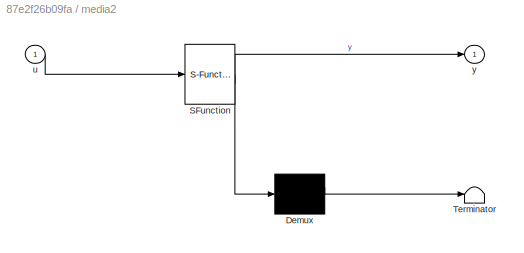
BLOCK [SubSystem] media2
  ErrorFcn = Stateflow.Translate.translate
  LibrarySourceBlock = simulink/User-Defined\nFunctions/MATLAB Function
  PermitHierarchicalResolution = ExplicitOnly
  SFBlockType = MATLAB Function
  TreatAsAtomicUnit = on
BLOCK [Demux] media2/ Demux 
  Outputs = 1
BLOCK [S-Function] media2/ SFunction 
  EnableBusSupport = on
  FunctionName = sf_sfun
  PortCounts = [1 2]
  SFcnIsStateOwnerBlock = off
  SFunctionDeploymentMode = off
  Tag = Stateflow S-Function 3
BLOCK [Terminator] media2/ Terminator 
BLOCK [Inport] media2/u
BLOCK [Outport] media2/y
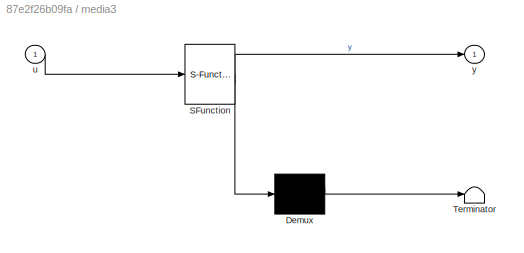
BLOCK [SubSystem] media3
  ErrorFcn = Stateflow.Translate.translate
  LibrarySourceBlock = simulink/User-Defined\nFunctions/MATLAB Function
  PermitHierarchicalResolution = ExplicitOnly
  SFBlockType = MATLAB Function
  TreatAsAtomicUnit = on
BLOCK [Demux] media3/ Demux 
  Outputs = 1
BLOCK [S-Function] media3/ SFunction 
  EnableBusSupport = on
  FunctionName = sf_sfun
  PortCounts = [1 2]
  SFcnIsStateOwnerBlock = off
  SFunctionDeploymentMode = off
  Tag = Stateflow S-Function 4
BLOCK [Terminator] media3/ Terminator 
BLOCK [Inport] media3/u
BLOCK [Outport] media3/y
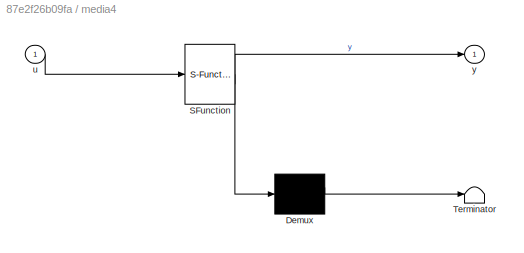
BLOCK [SubSystem] media4
  ErrorFcn = Stateflow.Translate.translate
  LibrarySourceBlock = simulink/User-Defined\nFunctions/MATLAB Function
  PermitHierarchicalResolution = ExplicitOnly
  SFBlockType = MATLAB Function
  TreatAsAtomicUnit = on
BLOCK [Demux] media4/ Demux 
  Outputs = 1
BLOCK [S-Function] media4/ SFunction 
  EnableBusSupport = on
  FunctionName = sf_sfun
  PortCounts = [1 2]
  SFcnIsStateOwnerBlock = off
  SFunctionDeploymentMode = off
  Tag = Stateflow S-Function 5
BLOCK [Terminator] media4/ Terminator 
BLOCK [Inport] media4/u
BLOCK [Outport] media4/y
ANNOTATION (root): ACQUA
ANNOTATION (root): CASA FARMACEUTICA
ANNOTATION (root): ELETTRCITA'
ANNOTATION (root): MASTER
LINE AffariRegolatori_01 (532):1 -> Goto2:1
LINE AssicurazioneQualita_01 (531):1 -> Goto30:1
LINE CISIA_MASTER (0):1 -> Display18:1
LINE CISIA_MASTER (0):2 -> Display19:1
LINE CISIA_MASTER (0):3 -> Display20:1
LINE CISIA_MASTER (0):4 -> Display21:1
LINE Constant1:1 -> Water_Availability (516):1
LINE Constant3:1 -> Generator_01 (495):3
LINE Constant4:1 -> Power_availability (520):1
LINE Constant6:1 -> UPS (521):1
LINE ControlloQualita_01 (528):1 -> Goto45:1
LINE FarmacoVigilanza_01 (530):1 -> Goto47:1
LINE From101:1 -> MinMax25:1
LINE From102:1 -> MinMax25:2
LINE From104:1 -> MinMax26:1
LINE From105:1 -> MinMax26:2
LINE From107:1 -> SAVE_FAR (40):1
LINE From108:1 -> SAVE_TOILETTE (27):1
LINE From109:1 -> SAVE_ASS (38):1
LINE From10:1 -> Mux3:2
LINE From110:1 -> SAVE_AFF (37):1
LINE From111:1 -> SAVE_PROD (42):1
LINE From112:1 -> MinMax6:2
LINE From113:1 -> MinMax8:1
LINE From114:1 -> MinMax8:2
LINE From115:1 -> MinMax16:1
LINE From116:1 -> MinMax20:1
LINE From117:1 -> MinMax16:2
LINE From118:1 -> MinMax20:2
LINE From119:1 -> Validazione_01 (527):2
LINE From11:1 -> MinMax4:2
LINE From120:1 -> ControlloQualita_01 (528):2
LINE From121:1 -> RicercaSviluppo_01 (529):2
LINE From122:1 -> Toilette_01 (499):2
LINE From123:1 -> MinMax:6
LINE From124:1 -> MinMax:7
LINE From12:1 -> MinMax2:2
LINE From13:1 -> MinMax4:1
LINE From14:1 -> MinMax5:2
LINE From15:1 -> MinMax12:2
LINE From16:1 -> Water_pipe_01 (505):2
LINE From17:1 -> Water_pipe_02 (503):2
LINE From18:1 -> Water_pipe_03 (504):2
LINE From19:1 -> MinMax12:1
LINE From1:1 -> Mux2:1
LINE From20:1 -> MinMax:3
LINE From21:1 -> MinMax:4
LINE From22:1 -> MinMax:5
LINE From23:1 -> Valve_02 (512):1
LINE From24:1 -> MinMax17:1
LINE From25:1 -> MinMax10:2
LINE From26:1 -> MinMax13:2
LINE From27:1 -> MinMax10:1
LINE From28:1 -> MinMax13:1
LINE From29:1 -> MinMax5:1
LINE From2:1 -> Mux2:2
LINE From30:1 -> MinMax11:2
LINE From31:1 -> MinMax14:2
LINE From32:1 -> Mux:3
LINE From33:1 -> Mux3:3
LINE From34:1 -> Mux3:4
LINE From35:1 -> Mux3:5
LINE From36:1 -> Mux:1
LINE From37:1 -> MinMax:2
LINE From38:1 -> MinMax3:2
LINE From39:1 -> MinMax14:1
LINE From3:1 -> MinMax7:1
LINE From40:1 -> SAVE_MAG (43):1
LINE From41:1 -> SAVE_VAL (36):1
LINE From42:1 -> MinMax15:2
LINE From43:1 -> MinMax15:1
LINE From44:1 -> SAVE_CON (39):1
LINE From45:1 -> MinMax17:2
LINE From46:1 -> MinMax9:2
LINE From47:1 -> MinMax9:1
LINE From48:1 -> MinMax11:1
LINE From49:1 -> Valve_03 (513):1
LINE From4:1 -> MinMax7:2
LINE From50:1 -> MinMax3:1
LINE From51:1 -> Water_pipe_04 (533):2
LINE From52:1 -> Water_pipe_05 (534):2
LINE From53:1 -> SCADA_02 (509):1
LINE From54:1 -> Water_pipe_06 (535):2
LINE From56:1 -> Water_pipe_07 (536):2
LINE From57:1 -> MinMax1:3
LINE From58:1 -> Mux3:6
LINE From59:1 -> Mux:2
LINE From5:1 -> Valve_01 (511):1
LINE From60:1 -> FarmacoVigilanza_01 (530):2
LINE From61:1 -> Valve_04 (514):1
LINE From62:1 -> MinMax4:3
LINE From63:1 -> SAVE_RIC (41):1
LINE From64:1 -> Valve_05 (515):1
LINE From65:1 -> MinMax1:1
LINE From66:1 -> MinMax1:2
LINE From67:1 -> Valve_06 (523):1
LINE From68:1 -> Valve_07 (524):1
LINE From69:1 -> Mux3:7
LINE From6:1 -> Produzione_01 (526):2
LINE From70:1 -> Mux4:1
LINE From71:1 -> Mux4:2
LINE From72:1 -> Mux4:3
LINE From73:1 -> Mux4:4
LINE From74:1 -> Mux4:5
LINE From75:1 -> Mux4:6
LINE From76:1 -> Mux4:7
LINE From77:1 -> Mux4:8
LINE From78:1 -> Magazzino_01 (525):2
LINE From79:1 -> MinMax18:2
LINE From7:1 -> MinMax:1
LINE From80:1 -> MinMax6:1
LINE From81:1 -> Mux4:9
LINE From82:1 -> Mux1:1
LINE From83:1 -> Mux1:2
LINE From84:1 -> Mux1:3
LINE From85:1 -> MinMax18:1
LINE From86:1 -> MinMax18:3
LINE From87:1 -> PLC_01 (522):3
LINE From8:1 -> Mux3:1
LINE From90:1 -> UPS (521):2
LINE From91:1 -> Tank_01 (334):2
LINE From93:1 -> MinMax22:1
LINE From94:1 -> MinMax22:2
LINE From96:1 -> MinMax23:1
LINE From97:1 -> MinMax23:2
LINE From98:1 -> MinMax24:2
LINE From99:1 -> MinMax24:1
LINE From9:1 -> SAVE_WATER (32):1
LINE Generator_01 (495):1 -> MinMax2:1
LINE Generator_01 (495):2 -> Goto42:1
LINE Generator_01 (495):3 -> Goto27:1
LINE Magazzino_01 (525):1 -> Goto8:1
LINE MinMax10:1 -> SCADA_03 (510):2
LINE MinMax11:1 -> Valve_01 (511):2
LINE MinMax12:1 -> Valve_02 (512):2
LINE MinMax13:1 -> Valve_03 (513):2
LINE MinMax14:1 -> Produzione_01 (526):1
LINE MinMax15:1 -> Magazzino_01 (525):1
LINE MinMax16:1 -> Valve_06 (523):2
LINE MinMax17:1 -> AffariRegolatori_01 (532):1
LINE MinMax18:1 -> PLC_02 (506):2
LINE MinMax1:1 -> PLC_02 (506):1
LINE MinMax20:1 -> Valve_07 (524):2
LINE MinMax22:1 -> Validazione_01 (527):1
LINE MinMax23:1 -> ControlloQualita_01 (528):1
LINE MinMax24:1 -> RicercaSviluppo_01 (529):1
LINE MinMax25:1 -> FarmacoVigilanza_01 (530):1
LINE MinMax26:1 -> Toilette_01 (499):1
LINE MinMax2:1 -> PLC_01 (522):1
LINE MinMax3:1 -> SCADA_01 (508):2
LINE MinMax4:1 -> PLC_01 (522):2
LINE MinMax5:1 -> SCADA_02 (509):2
LINE MinMax6:1 -> Valve_04 (514):2
LINE MinMax7:1 -> AssicurazioneQualita_01 (531):1
LINE MinMax8:1 -> Valve_05 (515):2
LINE MinMax9:1 -> PLC_03 (507):2
LINE MinMax:1 -> PLC_03 (507):1
LINE Mux1:1 -> media1:1
LINE Mux2:1 -> media2:1
LINE Mux3:1 -> media3:1
LINE Mux4:1 -> media4:1
LINE Mux:1 -> media:1
NET PLC_01 (522):1 -> Generator_01 (495):1, SCADA_01 (508):1
LINE PLC_01 (522):2 -> Generator_01 (495):2
NET PLC_01 (522):3 -> Goto35:1, SCADA_01 (508):3
LINE PLC_02 (506):1 -> Goto22:1
NET PLC_02 (506):3 -> Goto36:1, SCADA_02 (509):3
NET PLC_03 (507):1 -> Goto7:1, SCADA_03 (510):1
NET PLC_03 (507):2 -> Valve_01 (511):3, Valve_02 (512):3, Valve_03 (513):3, Valve_04 (514):3, Valve_05 (515):3, Valve_06 (523):3, Valve_07 (524):3
NET PLC_03 (507):3 -> Goto37:1, SCADA_03 (510):3
LINE Power_availability (520):1 -> Goto18:1
NET Power_availability (520):2 -> Goto12:1, UPS (521):3
LINE Produzione_01 (526):1 -> Goto:1
LINE RicercaSviluppo_01 (529):1 -> Goto46:1
LINE SCADA_01 (508):1 -> Goto15:1
LINE SCADA_01 (508):2 -> Goto16:1
LINE SCADA_02 (509):1 -> Goto20:1
LINE SCADA_02 (509):2 -> Goto21:1
LINE SCADA_03 (510):1 -> MinMax:8
LINE SCADA_03 (510):2 -> Goto13:1
NET Tank_01 (334):1 -> Water_pipe_01 (505):1, Water_pipe_02 (503):1, Water_pipe_03 (504):1, Water_pipe_04 (533):1, Water_pipe_05 (534):1, Water_pipe_06 (535):1, Water_pipe_07 (536):1
LINE Toilette_01 (499):1 -> Goto48:1
LINE UPS (521):1 -> Goto19:1
LINE Validazione_01 (527):1 -> Goto44:1
LINE Valve_01 (511):1 -> Goto9:1
LINE Valve_01 (511):2 -> Goto1:1
LINE Valve_02 (512):1 -> Goto10:1
LINE Valve_02 (512):2 -> Goto3:1
LINE Valve_03 (513):1 -> Goto11:1
LINE Valve_03 (513):2 -> Goto6:1
LINE Valve_04 (514):1 -> Goto25:1
LINE Valve_04 (514):2 -> Goto49:1
LINE Valve_05 (515):1 -> Goto26:1
LINE Valve_05 (515):2 -> Goto50:1
LINE Valve_06 (523):1 -> Goto33:1
LINE Valve_06 (523):2 -> Goto51:1
LINE Valve_07 (524):1 -> Goto38:1
LINE Valve_07 (524):2 -> Goto52:1
LINE Water_Availability (516):1 -> Tank_01 (334):1
LINE Water_Availability (516):2 -> Goto34:1
LINE Water_pipe_01 (505):1 -> Goto4:1
LINE Water_pipe_02 (503):1 -> Goto31:1
LINE Water_pipe_03 (504):1 -> Goto32:1
LINE Water_pipe_04 (533):1 -> Goto5:1
LINE Water_pipe_05 (534):1 -> Goto14:1
LINE Water_pipe_06 (535):1 -> Goto23:1
LINE Water_pipe_07 (536):1 -> Goto24:1
LINE media1:1 -> SAVE_PLC (31):1
LINE media2:1 -> SAVE_17 (17):1
LINE media3:1 -> SAVE_VALVE (25):1
LINE media4:1 -> SAVE_GENERAL (33):1
LINE media:1 -> SAVE_SCADA (26):1
note: NET lines group one-source signal fan-out (src -> all destinations, sorted); 1:1 wires keep LINE
CHART media states=1 transitions=1
  STATE_LABEL 'eML_blk_kernel()'
  STATE_LABEL 'SCRIPT:\nfunction y = media(u)\n\ny = mean(u);\n'
CHART media2 states=1 transitions=1
  STATE_LABEL 'eML_blk_kernel()'
  STATE_LABEL 'SCRIPT:\nfunction y = media(u)\n\ny = mean(u);\n'
CHART media3 states=1 transitions=1
  STATE_LABEL 'eML_blk_kernel()'
  STATE_LABEL 'SCRIPT:\nfunction y = media(u)\n\ny = mean(u);\n'
CHART media4 states=1 transitions=1
  STATE_LABEL 'eML_blk_kernel()'
  STATE_LABEL 'SCRIPT:\nfunction y = media(u)\n\ny = mean(u);\n'
CHART media1 states=1 transitions=1
  STATE_LABEL 'eML_blk_kernel()'
  STATE_LABEL 'SCRIPT:\nfunction y = media(u)\n\ny = mean(u);\n'
CHART  states=0 transitions=0
CHART  states=0 transitions=0
CHART  states=0 transitions=0
CHART  states=0 transitions=0
CHART  states=0 transitions=0
